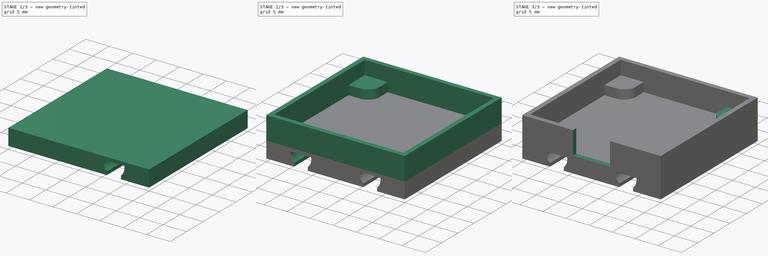
[diagram: build sequence overview — one tinted view per stage of 3, left to right]
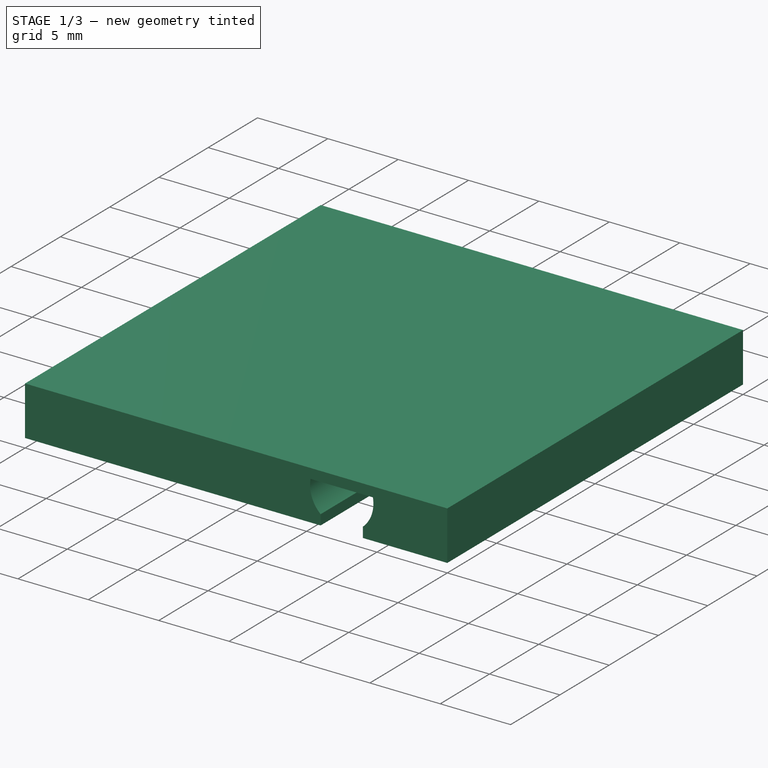
[diagram: stage 1 of 3 — iso view after this stage's code; geometry added in this stage tinted green]
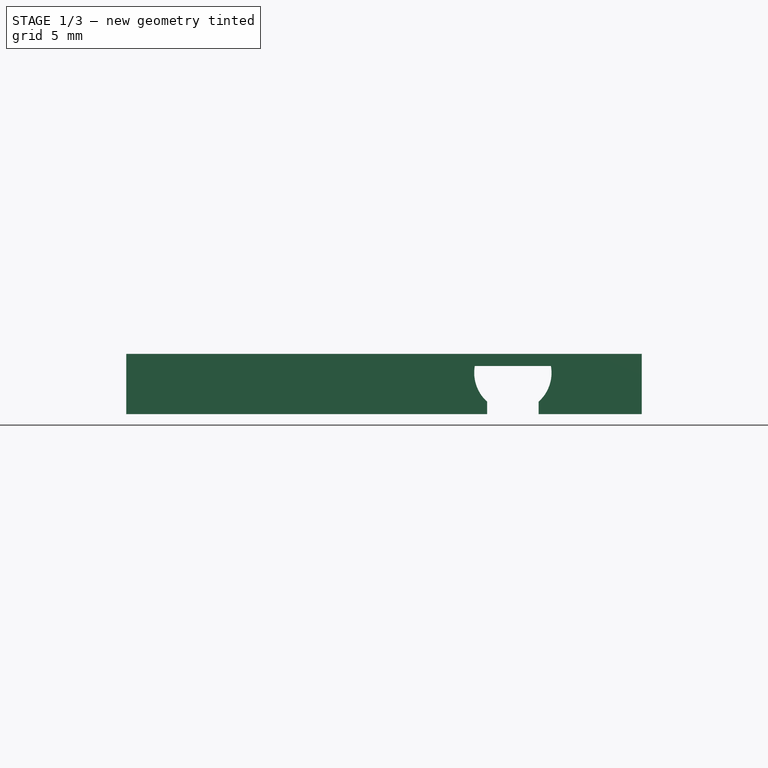
[diagram: stage 1 of 3 — front view after this stage's code; geometry added in this stage tinted green]
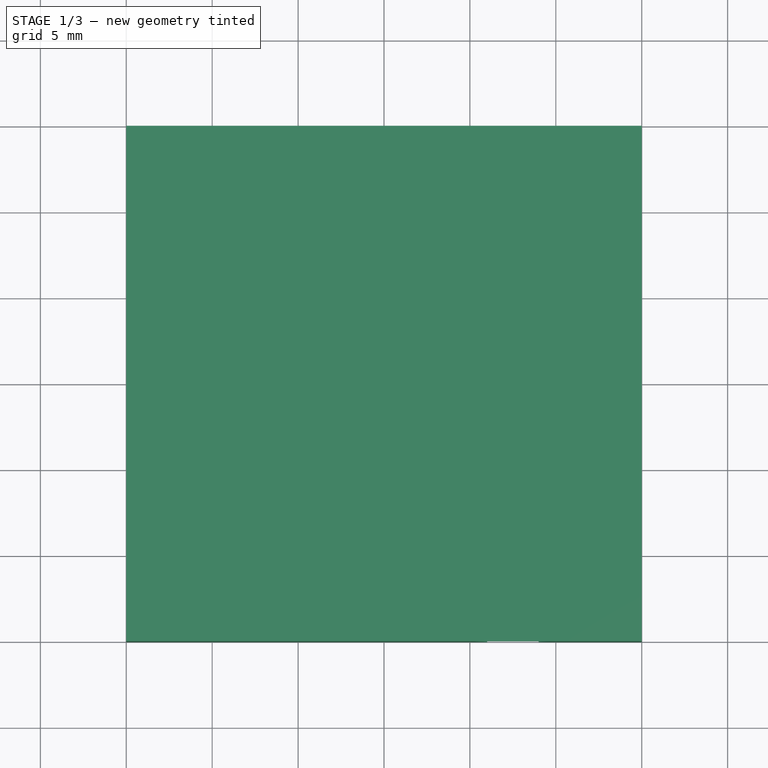
[diagram: stage 1 of 3 — top view after this stage's code; geometry added in this stage tinted green]
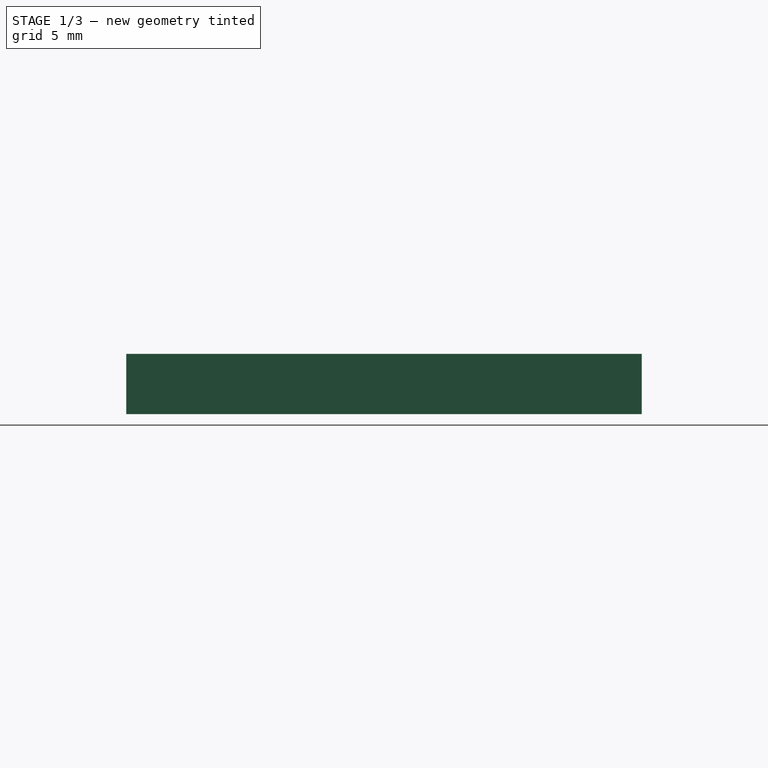
[diagram: stage 1 of 3 — right view after this stage's code; geometry added in this stage tinted green]
FCSTD DOCUMENT  (FreeCAD 0.16R6707 (Git))
Label: oled_bottom
License: All rights reserved
LicenseURL: http://en.wikipedia.org/wiki/All_rights_reserved
objects: Sketcher::SketchObject×5, PartDesign::Pad×3, PartDesign::Pocket×2, PartDesign::LinearPattern×1, PartDesign::PolarPattern×1
note: 17 computed .brp shape members not serialized (recipe doc carries the construction recipe); baked Part::Feature solids carry a one-line shape summary decoded from their .brp

FEATURE [Sketcher::SketchObject] Sketch
  sketch-geometry (4):
    g0: LineSegment StartX=-15 StartY=15 StartZ=0 EndX=15 EndY=15 EndZ=0
    g1: LineSegment StartX=15 StartY=15 StartZ=0 EndX=15 EndY=-15 EndZ=0
    g2: LineSegment StartX=15 StartY=-15 StartZ=0 EndX=-15 EndY=-15 EndZ=0
    g3: LineSegment StartX=-15 StartY=-15 StartZ=0 EndX=-15 EndY=15 EndZ=0
  constraints (12):
    c: Coincident(g0,g1)
    c: Coincident(g1,g2)
    c: Coincident(g2,g3)
    c: Coincident(g3,g0)
    c: Horizontal(g0)
    c: Horizontal(g2)
    c: Vertical(g1)
    c: Vertical(g3)
    c: Symmetric(g0,g0,g-2)
    c: Symmetric(g0,g2,g-1)
    c: DistanceX(g0,g0) = 30
    c: DistanceY(g2,g0) = 30
FEATURE [PartDesign::Pad] Pad  label="base"
  Length = 3.5
  Length2 = 100
  Sketch = -> Sketch
  Type = 0
FEATURE [Sketcher::SketchObject] Sketch001
  Placement = pos=(0,15,0) rot=(0,0.707107,0.707107;3.14159rad)
  Support = -> Pad [Face1]
  sketch-geometry (9):
    g0: LineSegment StartX=-9 StartY=0.722949 StartZ=0 EndX=-9 EndY=0 EndZ=0
    g1: LineSegment StartX=-9 StartY=0 StartZ=0 EndX=-6 EndY=0 EndZ=0
    g2: LineSegment StartX=-6 StartY=0 StartZ=0 EndX=-6 EndY=0.722949 EndZ=0
    g3: LineSegment [constr] StartX=-9 StartY=0.722949 StartZ=0 EndX=-6 EndY=0.722949 EndZ=0
    g4: GeomPoint [constr] X=-7.5 Y=0 Z=0
    g5: ArcOfCircle CenterX=-7.5 CenterY=2.4 CenterZ=0 NormalX=0 NormalY=0 NormalZ=1 Radius=2.25 StartAngle=2.96286 EndAngle=3.98266
    g6: ArcOfCircle CenterX=-7.5 CenterY=2.4 CenterZ=0 NormalX=0 NormalY=0 NormalZ=1 Radius=2.25 StartAngle=5.44212 EndAngle=6.46191
    g7: LineSegment [constr] StartX=-7.5 StartY=2.4 StartZ=0 EndX=-7.5 EndY=0 EndZ=0
    g8: LineSegment StartX=-9.71416 StartY=2.8 StartZ=0 EndX=-5.28584 EndY=2.8 EndZ=0
  constraints (24):
    c: Vertical(g0)
    c: Coincident(g1,g0)
    c: Horizontal(g1)
    c: Coincident(g2,g1)
    c: Coincident(g3,g0)
    c: Coincident(g3,g2)
    c: Horizontal(g3)
    c: Vertical(g2)
    c: DistanceX(g0,g1) = 3
    c: PointOnObject(g0,g-1)
    c: Symmetric(g0,g1,g4)
    c: DistanceX(g4,g-1) = 7.5
    c: Coincident(g5,g0)
    c: Coincident(g6,g5)
    c: Coincident(g6,g2)
    c: Radius(g5) = 2.25
    c: Equal(g5,g6)
    c: Coincident(g7,g5)
    c: Coincident(g7,g4)
    c: DistanceY(g4,g5) = 2.4
    c: Coincident(g8,g5)
    c: Coincident(g8,g6)
    c: Horizontal(g8)
    c: DistanceY(g1,g6) = 2.8
FEATURE [PartDesign::Pocket] Pocket  label="ft grooves"
  Length = 5
  Sketch = -> Sketch001
  Type = 1
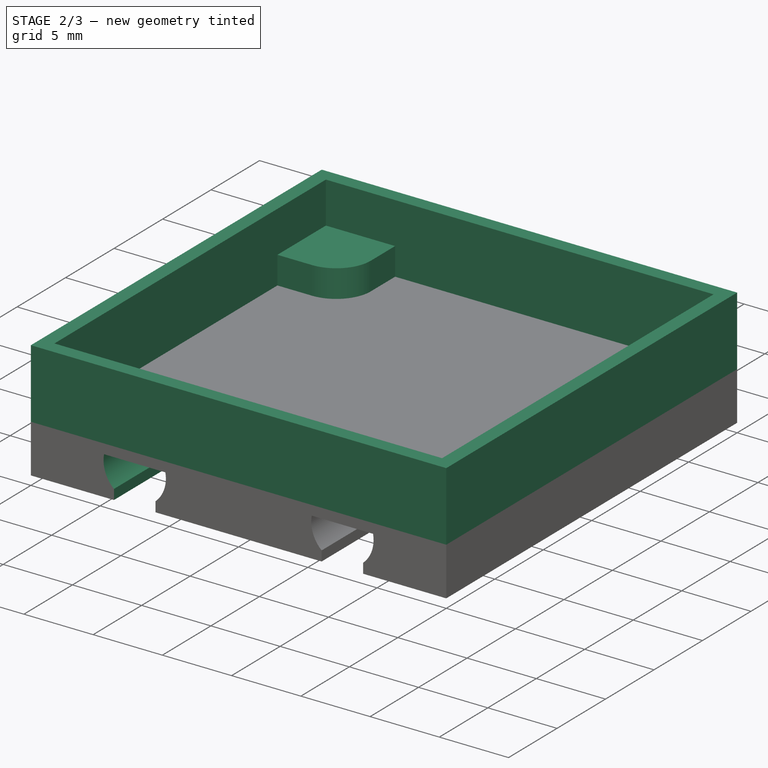
[diagram: stage 2 of 3 — iso view after this stage's code; geometry added in this stage tinted green]
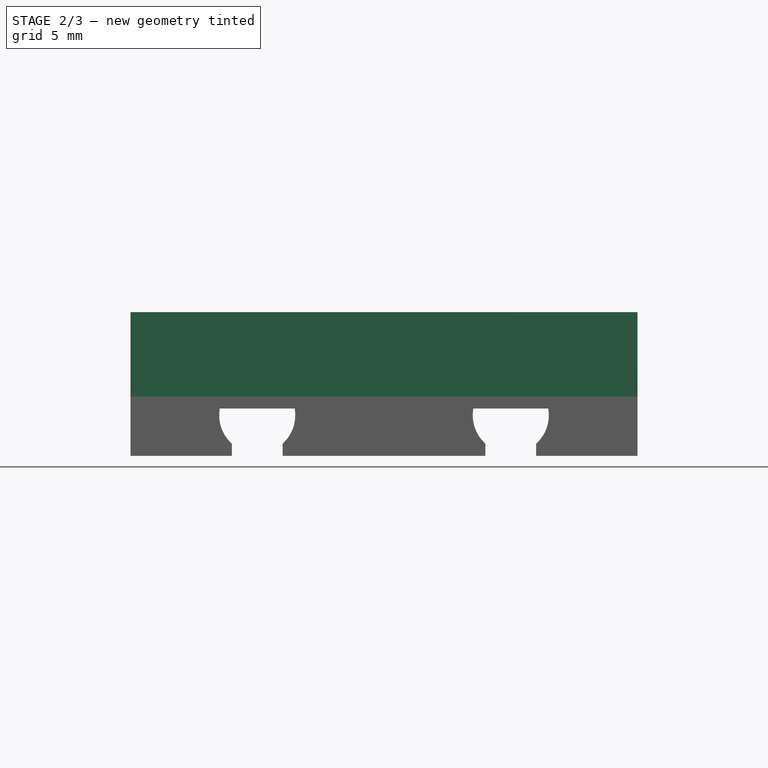
[diagram: stage 2 of 3 — front view after this stage's code; geometry added in this stage tinted green]
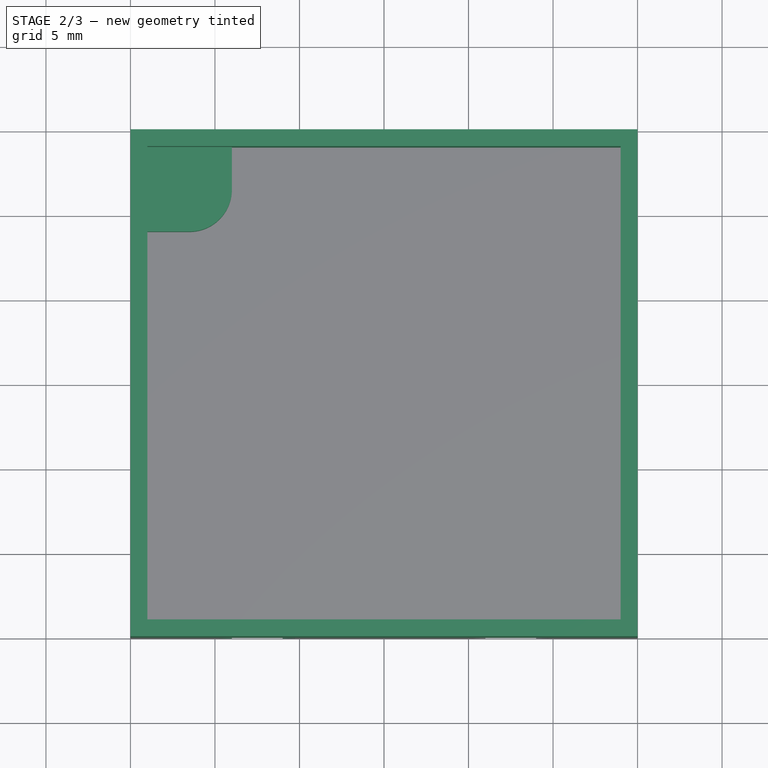
[diagram: stage 2 of 3 — top view after this stage's code; geometry added in this stage tinted green]
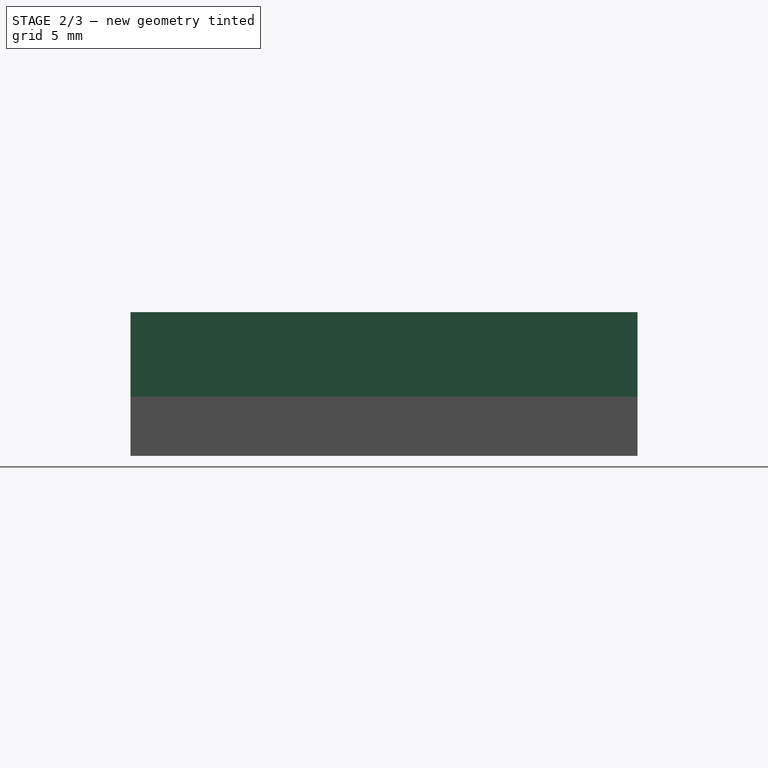
[diagram: stage 2 of 3 — right view after this stage's code; geometry added in this stage tinted green]
FEATURE [PartDesign::LinearPattern] LinearPattern
  Direction = -> Sketch001 [H_Axis]
  Length = 15
  Occurrences = 2
  Originals = -> [Pocket]
FEATURE [Sketcher::SketchObject] Sketch002
  Placement = pos=(0,0,3.5) rot=(0,0,1;0rad)
  Support = -> LinearPattern [Face16]
  sketch-geometry (8):
    g0: LineSegment StartX=-15 StartY=15 StartZ=0 EndX=15 EndY=15 EndZ=0
    g1: LineSegment StartX=15 StartY=15 StartZ=0 EndX=15 EndY=-15 EndZ=0
    g2: LineSegment StartX=15 StartY=-15 StartZ=0 EndX=-15 EndY=-15 EndZ=0
    g3: LineSegment StartX=-15 StartY=-15 StartZ=0 EndX=-15 EndY=15 EndZ=0
    g4: LineSegment StartX=-14 StartY=14 StartZ=0 EndX=14 EndY=14 EndZ=0
    g5: LineSegment StartX=14 StartY=14 StartZ=0 EndX=14 EndY=-14 EndZ=0
    g6: LineSegment StartX=14 StartY=-14 StartZ=0 EndX=-14 EndY=-14 EndZ=0
    g7: LineSegment StartX=-14 StartY=-14 StartZ=0 EndX=-14 EndY=14 EndZ=0
  constraints (24):
    c: Coincident(g0,g1)
    c: Coincident(g1,g2)
    c: Coincident(g2,g3)
    c: Coincident(g3,g0)
    c: Horizontal(g0)
    c: Horizontal(g2)
    c: Vertical(g1)
    c: Vertical(g3)
    c: Coincident(g4,g5)
    c: Coincident(g5,g6)
    c: Coincident(g6,g7)
    c: Coincident(g7,g4)
    c: Horizontal(g4)
    c: Horizontal(g6)
    c: Vertical(g5)
    c: Vertical(g7)
    c: Symmetric(g0,g0,g-2)
    c: Symmetric(g4,g4,g-2)
    c: Symmetric(g4,g6,g-1)
    c: Symmetric(g2,g0,g-1)
    c: DistanceX(g0,g0) = 30
    c: DistanceY(g2,g0) = 30
    c: DistanceX(g0,g4) = 1
    c: DistanceY(g4,g0) = 1
FEATURE [PartDesign::Pad] Pad001  label="sides"
  Length = 5
  Length2 = 100
  Sketch = -> Sketch002
  Type = 0
FEATURE [Sketcher::SketchObject] Sketch003
  Placement = pos=(0,0,3.5) rot=(0,0,1;0rad)
  Support = -> Pad001 [Face14]
  sketch-geometry (7):
    g0: LineSegment StartX=-14 StartY=14 StartZ=0 EndX=-14 EndY=9 EndZ=0
    g1: LineSegment StartX=-14 StartY=9 StartZ=0 EndX=-11.5 EndY=9 EndZ=0
    g2: LineSegment StartX=-14 StartY=14 StartZ=0 EndX=-9 EndY=14 EndZ=0
    g3: LineSegment StartX=-9 StartY=14 StartZ=0 EndX=-9 EndY=11.5 EndZ=0
    g4: ArcOfCircle CenterX=-11.5 CenterY=11.5 CenterZ=0 NormalX=0 NormalY=0 NormalZ=1 Radius=2.5 StartAngle=4.71239 EndAngle=6.28319
    g5: LineSegment [constr] StartX=-11.5 StartY=11.5 StartZ=0 EndX=-9 EndY=11.5 EndZ=0
    g6: LineSegment [constr] StartX=-11.5 StartY=11.5 StartZ=0 EndX=-11.5 EndY=9 EndZ=0
  constraints (20):
    c: Vertical(g0)
    c: Coincident(g1,g0)
    c: Horizontal(g1)
    c: Coincident(g2,g0)
    c: Horizontal(g2)
    c: Coincident(g3,g2)
    c: Vertical(g3)
    c: Coincident(g4,g3)
    c: Coincident(g4,g1)
    c: Coincident(g5,g4)
    c: Coincident(g5,g3)
    c: Coincident(g6,g4)
    c: Coincident(g6,g1)
    c: Horizontal(g5)
    c: Vertical(g6)
    c: Radius(g4) = 2.5
    c: DistanceY(g3,g2) = 2.5
    c: DistanceX(g0,g1) = 2.5
    c: DistanceX(g4,g-1) = 11.5
    c: DistanceY(g-1,g4) = 11.5
FEATURE [PartDesign::Pad] Pad002  label="standoffs"
  Length = 2
  Length2 = 100
  Sketch = -> Sketch003
  Type = 0
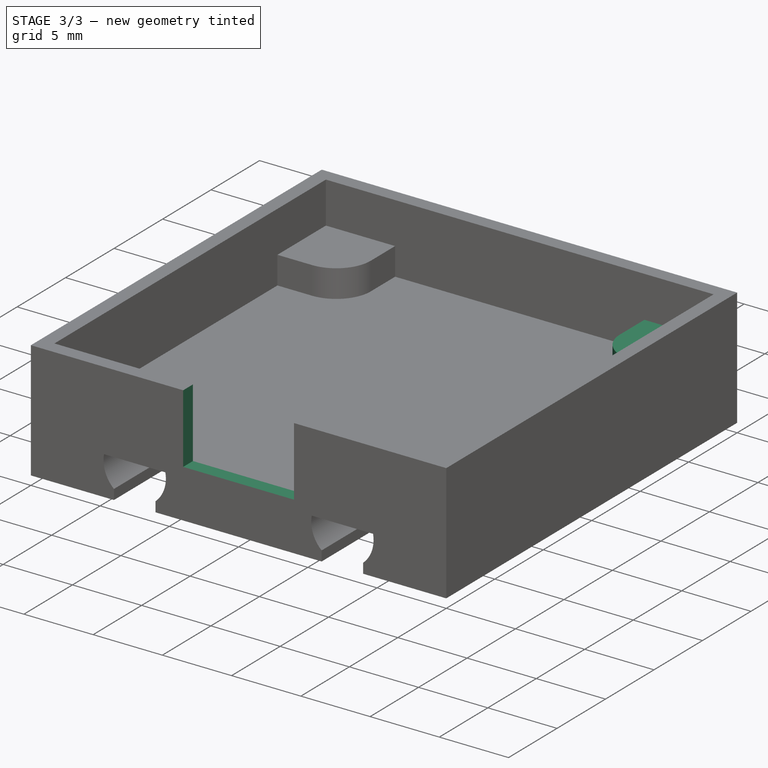
[diagram: stage 3 of 3 — iso view after this stage's code; geometry added in this stage tinted green]
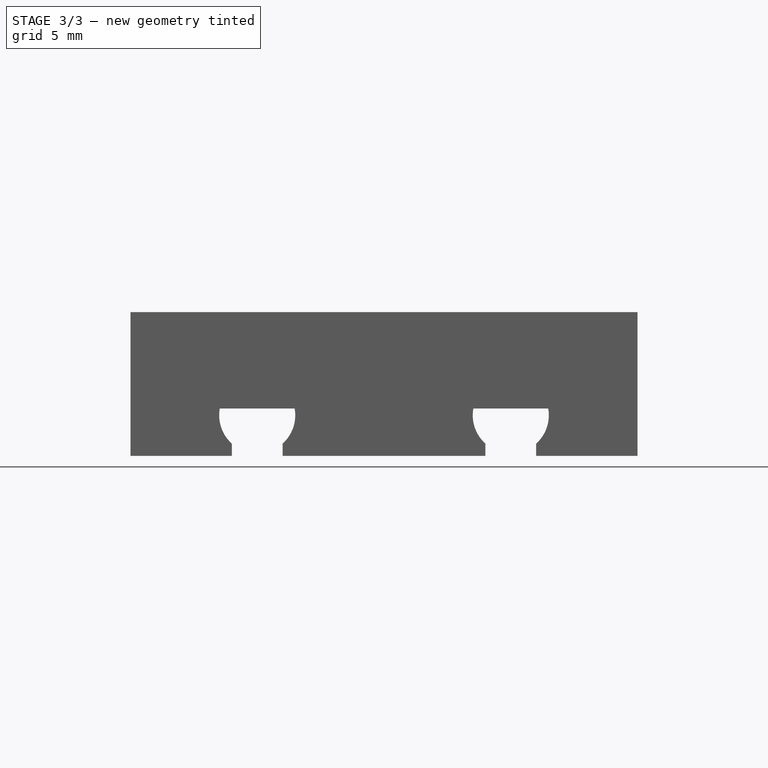
[diagram: stage 3 of 3 — front view after this stage's code; geometry added in this stage tinted green]
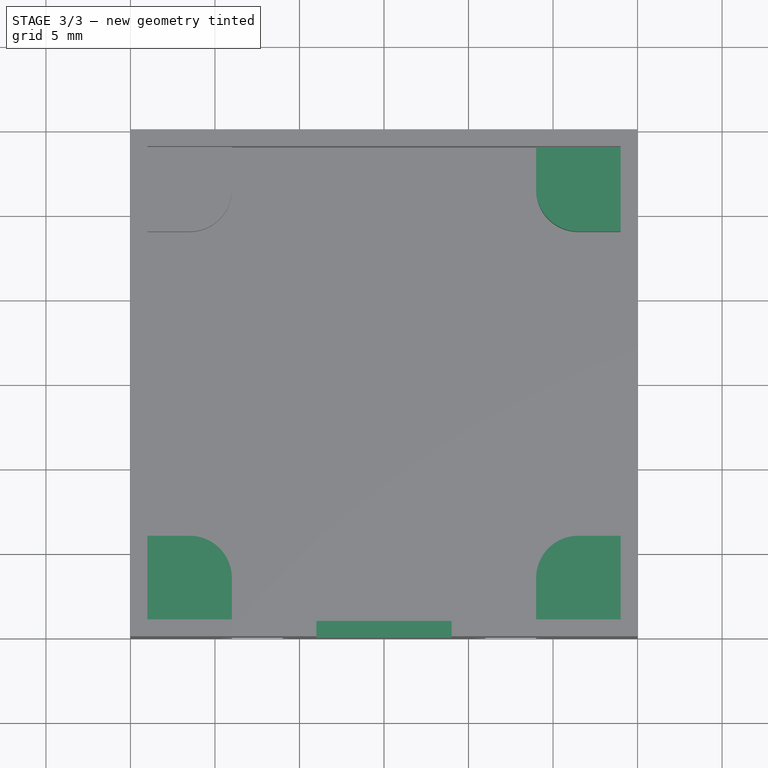
[diagram: stage 3 of 3 — top view after this stage's code; geometry added in this stage tinted green]
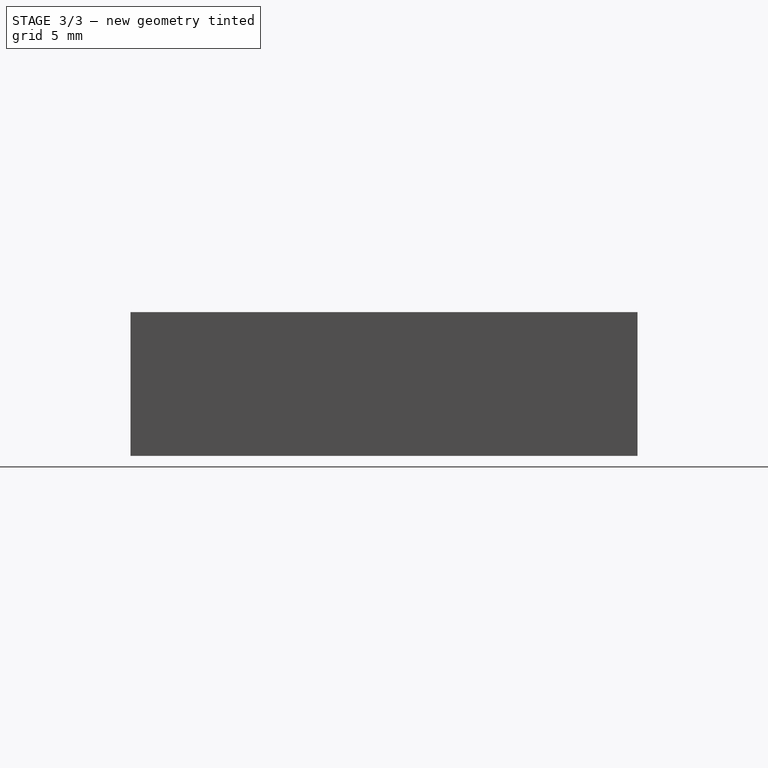
[diagram: stage 3 of 3 — right view after this stage's code; geometry added in this stage tinted green]
FEATURE [PartDesign::PolarPattern] PolarPattern
  Angle = 360
  Axis = -> Sketch003 [N_Axis]
  Occurrences = 4
  Originals = -> [Pad002]
FEATURE [Sketcher::SketchObject] Sketch004
  Placement = pos=(0,-15,0) rot=(1,0,0;1.5708rad)
  Support = -> PolarPattern [Face4]
  sketch-geometry (4):
    g0: LineSegment StartX=-4 StartY=8.5 StartZ=0 EndX=4 EndY=8.5 EndZ=0
    g1: LineSegment StartX=4 StartY=8.5 StartZ=0 EndX=4 EndY=3.5 EndZ=0
    g2: LineSegment StartX=4 StartY=3.5 StartZ=0 EndX=-4 EndY=3.5 EndZ=0
    g3: LineSegment StartX=-4 StartY=3.5 StartZ=0 EndX=-4 EndY=8.5 EndZ=0
  constraints (12):
    c: Coincident(g0,g1)
    c: Coincident(g1,g2)
    c: Coincident(g2,g3)
    c: Coincident(g3,g0)
    c: Horizontal(g0)
    c: Horizontal(g2)
    c: Vertical(g1)
    c: Vertical(g3)
    c: Symmetric(g0,g0,g-2)
    c: DistanceX(g0,g0) = 8
    c: DistanceY(g2,g0) = 5
    c: DistanceY(g-1,g1) = 3.5
FEATURE [PartDesign::Pocket] Pocket001
  Length = 5
  Sketch = -> Sketch004
  Type = 2
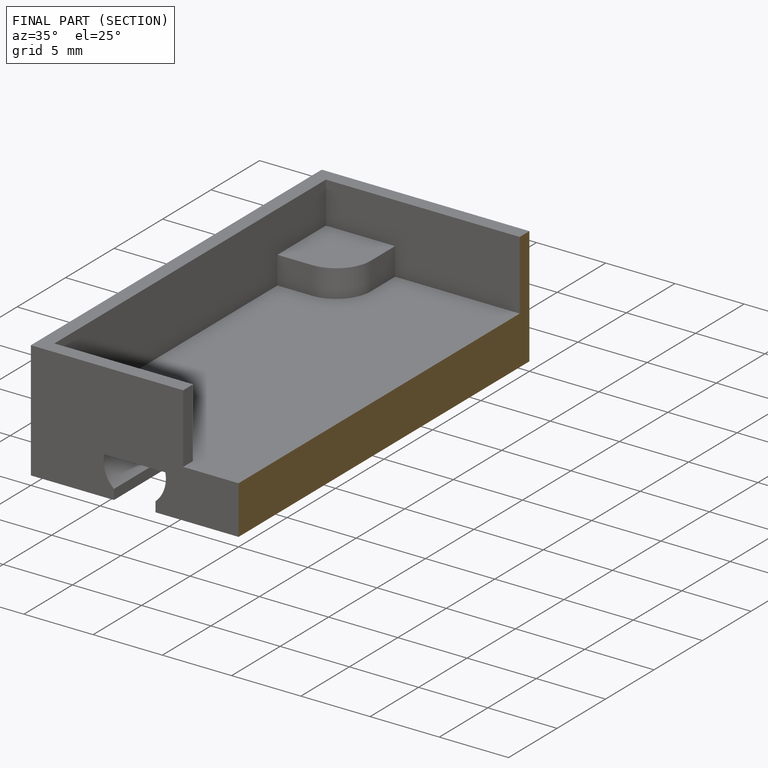
[diagram: finished part — half-section view (interior)]
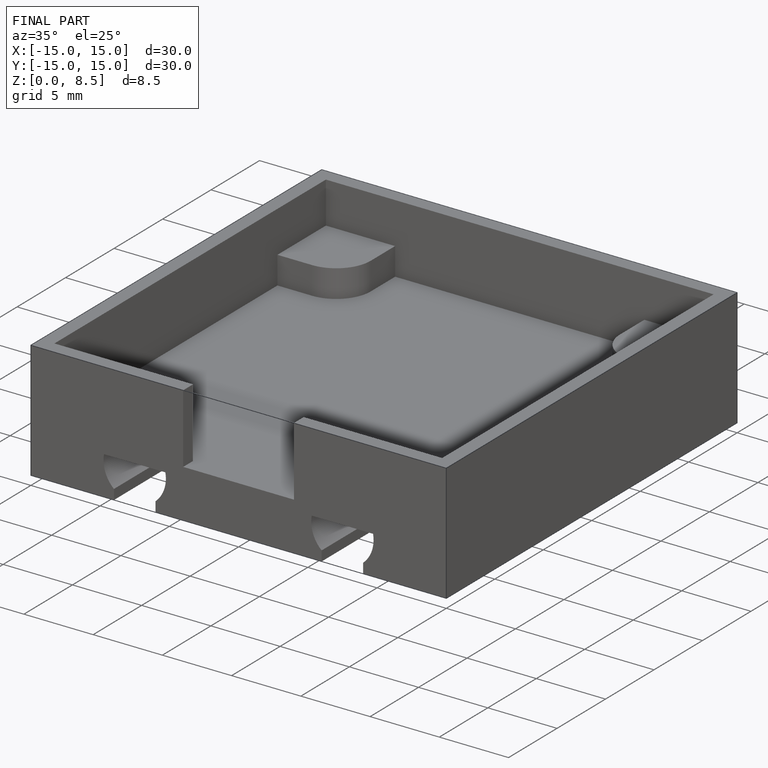
[diagram: finished part — iso view with bounding-box wireframe]
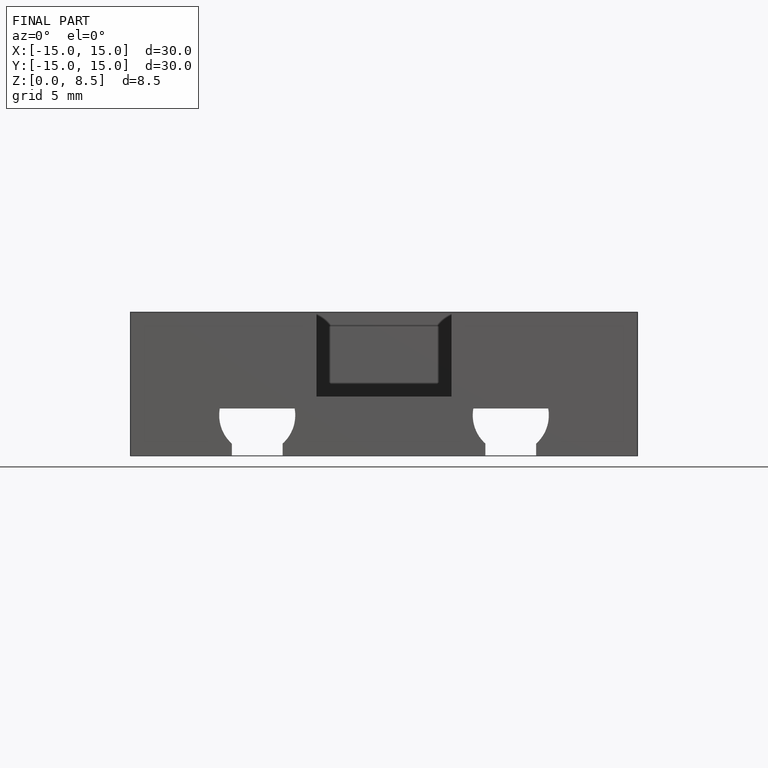
[diagram: finished part — front view with bounding-box wireframe]
